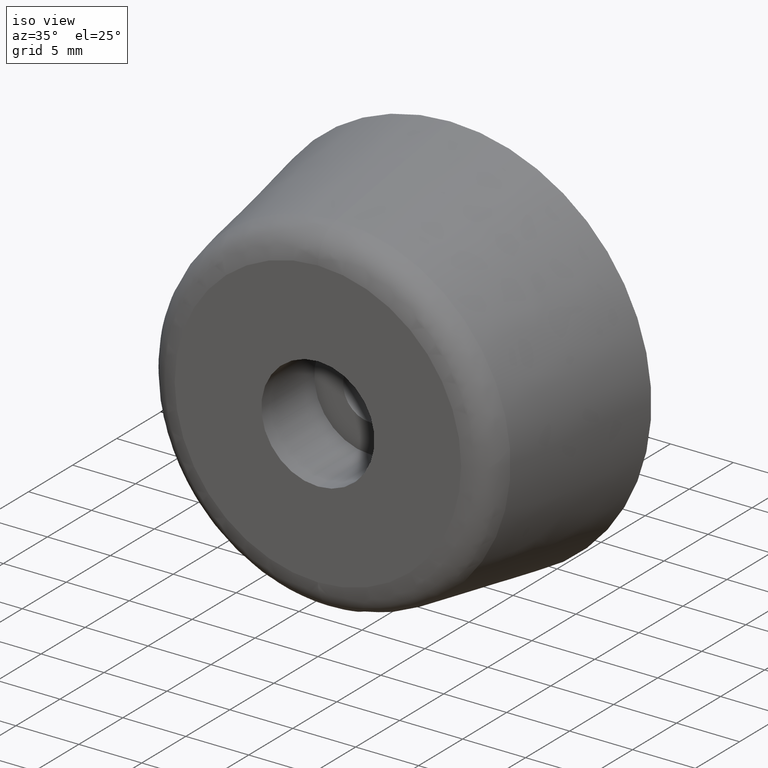
[diagram: clean part render]
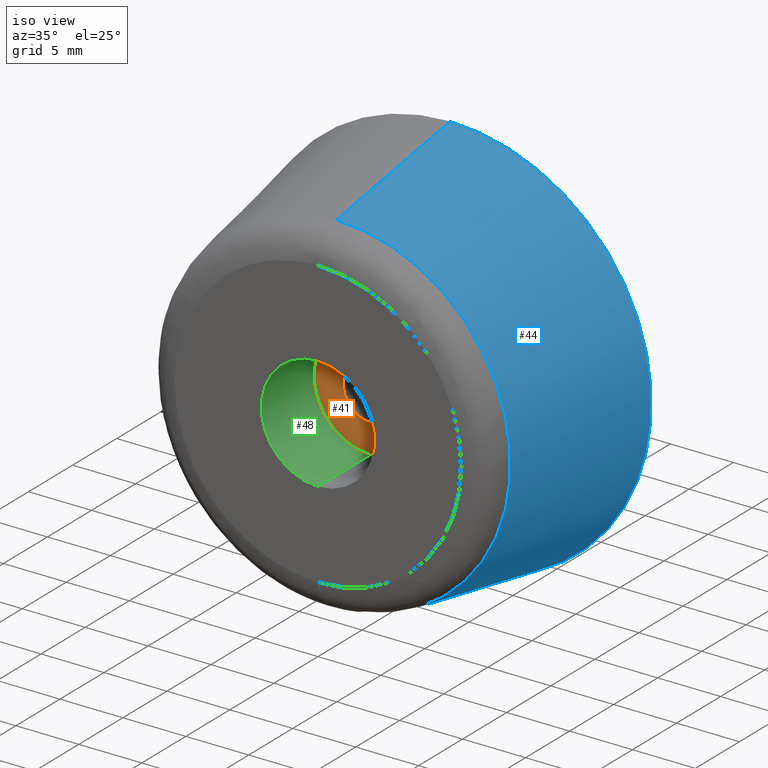
[diagram: same view with three faces highlighted in distinct colors, each labeled with its STEP entity id]
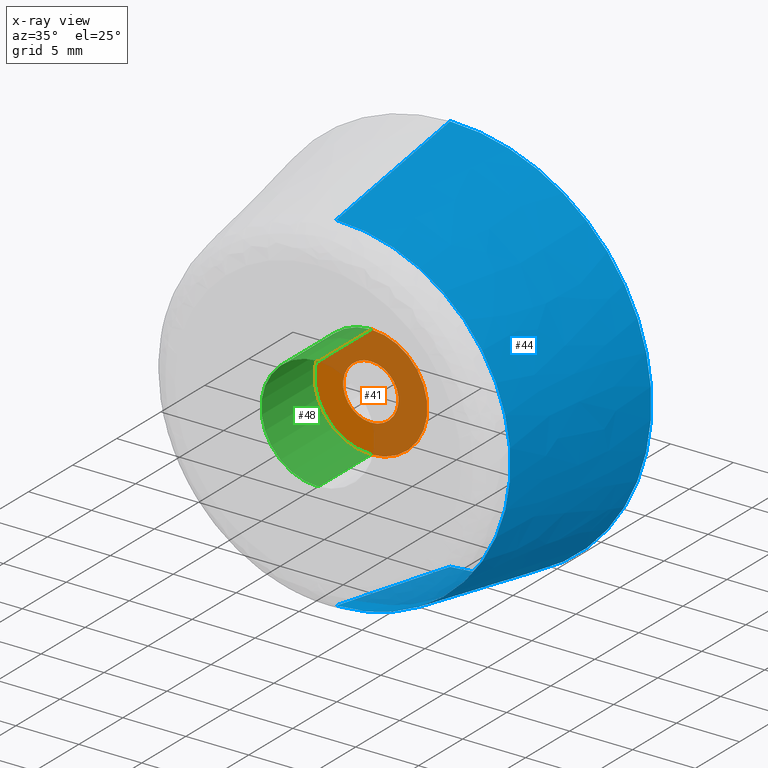
[diagram: x-ray of the same camera — body ghosted, the three highlighted faces saturated]
A machine part, iso view with three faces highlighted in distinct colors.
The next image is the same camera in x-ray (body ghosted, the three faces saturated) — at least one of them is partly hidden behind the body in this view.
Their STEP definitions:

[orange] entity #41 — the highlighted planar face has unit normal (0, -1, -0).
#41=ADVANCED_FACE('',(#63,#64),#62,.T.);
#62=PLANE('',#173);
#63=FACE_OUTER_BOUND('',#174,.T.);
#64=FACE_BOUND('',#175,.T.);
#170=CARTESIAN_POINT('',(-9.35307436087E+00,-9.00000000000E+00,1.03500000000E+01));
#171=DIRECTION('',(0.00000000000E+00,-1.00000000000E+00,-0.00000000000E+00));
#172=DIRECTION('',(0.00000000000E+00,0.00000000000E+00,-1.00000000000E+00));
#173=AXIS2_PLACEMENT_3D('',#170,#171,#172);
#174=EDGE_LOOP('',(#280,#281));
#175=EDGE_LOOP('',(#282,#283));
#280=ORIENTED_EDGE('',*,*,#324,.T.);
#281=ORIENTED_EDGE('',*,*,#325,.T.);
#282=ORIENTED_EDGE('',*,*,#326,.F.);
#283=ORIENTED_EDGE('',*,*,#327,.F.);
#324=EDGE_CURVE('',#370,#371,#372,.T.);
#325=EDGE_CURVE('',#371,#370,#378,.T.);
#326=EDGE_CURVE('',#384,#385,#386,.T.);
#327=EDGE_CURVE('',#385,#384,#392,.T.);
#370=VERTEX_POINT('',#508);
#371=VERTEX_POINT('',#509);
#372=CIRCLE('',#513,4.50000000000E+00);
#378=CIRCLE('',#517,4.50000000000E+00);
#384=VERTEX_POINT('',#518);
#385=VERTEX_POINT('',#519);
#386=CIRCLE('',#523,2.20000000000E+00);
#392=CIRCLE('',#527,2.20000000000E+00);
#508=CARTESIAN_POINT('',(1.42108547152E-14,-9.00000000000E+00,-4.50000000000E+00));
#509=CARTESIAN_POINT('',(1.46549439251E-14,-9.00000000000E+00,4.50000000000E+00));
#510=CARTESIAN_POINT('',(1.42108547152E-14,-9.00000000000E+00,0.00000000000E+00));
#511=DIRECTION('',(0.00000000000E+00,-1.00000000000E+00,-0.00000000000E+00));
#512=DIRECTION('',(-1.22460635382E-16,0.00000000000E+00,-1.00000000000E+00));
#513=AXIS2_PLACEMENT_3D('',#510,#511,#512);
#514=CARTESIAN_POINT('',(1.42108547152E-14,-9.00000000000E+00,0.00000000000E+00));
#515=DIRECTION('',(0.00000000000E+00,-1.00000000000E+00,-0.00000000000E+00));
#516=DIRECTION('',(-1.22460635382E-16,0.00000000000E+00,-1.00000000000E+00));
#517=AXIS2_PLACEMENT_3D('',#514,#515,#516);
#518=CARTESIAN_POINT('',(1.43588844518E-14,-9.00000000000E+00,2.20000000000E+00));
#519=CARTESIAN_POINT('',(1.42108547152E-14,-9.00000000000E+00,-2.20000000000E+00));
#520=CARTESIAN_POINT('',(1.42108547152E-14,-9.00000000000E+00,0.00000000000E+00));
#521=DIRECTION('',(0.00000000000E+00,-1.00000000000E+00,-0.00000000000E+00));
#522=DIRECTION('',(-1.22460635382E-16,0.00000000000E+00,-1.00000000000E+00));
#523=AXIS2_PLACEMENT_3D('',#520,#521,#522);
#524=CARTESIAN_POINT('',(1.42108547152E-14,-9.00000000000E+00,0.00000000000E+00));
#525=DIRECTION('',(0.00000000000E+00,-1.00000000000E+00,-0.00000000000E+00));
#526=DIRECTION('',(-1.22460635382E-16,0.00000000000E+00,-1.00000000000E+00));
#527=AXIS2_PLACEMENT_3D('',#524,#525,#526);

[blue] entity #44 — the highlighted face is a freeform B-spline surface patch.
#44=ADVANCED_FACE('',(#95),#94,.T.);
#94=( BOUNDED_SURFACE() B_SPLINE_SURFACE( 2,1,((#193,#194),(#195,#196),(#197,#198),(#199,#200),(#201,#202)), .UNSPECIFIED.,.F.,.F.,.F.) B_SPLINE_SURFACE_WITH_KNOTS((3,2,3),(2,2),(0.00000000000E+00,5.00000000000E-01,1.00000000000E+00),(0.00000000000E+00,1.00000000000E+00), .UNSPECIFIED. ) GEOMETRIC_REPRESENTATION_ITEM() RATIONAL_B_SPLINE_SURFACE(((1.00000000000E+00,1.00000000000E+00),(7.07106781187E-01,7.07106781187E-01),(1.00000000000E+00,1.00000000000E+00),(7.07106781187E-01,7.07106781187E-01),(1.00000000000E+00,1.00000000000E+00))) REPRESENTATION_ITEM('') SURFACE() );
#95=FACE_OUTER_BOUND('',#203,.T.);
#193=CARTESIAN_POINT('',(1.59067660651E-14,-1.29109974683E+01,1.38481670886E+01));
#194=CARTESIAN_POINT('',(1.61702895938E-14,0.00000000000E+00,1.60000000000E+01));
#195=CARTESIAN_POINT('',(1.38481670886E+01,-1.29109974683E+01,1.38481670886E+01));
#196=CARTESIAN_POINT('',(1.60000000000E+01,0.00000000000E+00,1.60000000000E+01));
#197=CARTESIAN_POINT('',(1.38481670886E+01,-1.29109974683E+01,-8.47955674957E-16));
#198=CARTESIAN_POINT('',(1.60000000000E+01,0.00000000000E+00,-9.79717439318E-16));
#199=CARTESIAN_POINT('',(1.38481670886E+01,-1.29109974683E+01,-1.38481670886E+01));
#200=CARTESIAN_POINT('',(1.60000000000E+01,0.00000000000E+00,-1.60000000000E+01));
#201=CARTESIAN_POINT('',(1.42108547152E-14,-1.29109974683E+01,-1.38481670886E+01));
#202=CARTESIAN_POINT('',(1.42108547152E-14,0.00000000000E+00,-1.60000000000E+01));
#203=EDGE_LOOP('',(#292,#293,#294,#295));
#292=ORIENTED_EDGE('',*,*,#335,.F.);
#293=ORIENTED_EDGE('',*,*,#332,.T.);
#294=ORIENTED_EDGE('',*,*,#321,.T.);
#295=ORIENTED_EDGE('',*,*,#334,.F.);
#321=EDGE_CURVE('',#343,#342,#350,.T.);
#332=EDGE_CURVE('',#426,#343,#427,.T.);
#334=EDGE_CURVE('',#433,#342,#440,.T.);
#335=EDGE_CURVE('',#426,#433,#446,.T.);
#342=VERTEX_POINT('',#488);
#343=VERTEX_POINT('',#489);
#350=CIRCLE('',#497,1.60000000000E+01);
#426=VERTEX_POINT('',#548);
#427=(BOUNDED_CURVE() B_SPLINE_CURVE(1,(#549,#550),.UNSPECIFIED.,.F.,.F.) B_SPLINE_CURVE_WITH_KNOTS((2,2),(0.00000000000E+00,1.00000000000E+00),.UNSPECIFIED.) CURVE() GEOMETRIC_REPRESENTATION_ITEM() RATIONAL_B_SPLINE_CURVE((1.00000000000E+00,1.00000000000E+00)) REPRESENTATION_ITEM('') );
#433=VERTEX_POINT('',#551);
#440=(BOUNDED_CURVE() B_SPLINE_CURVE(1,(#556,#557),.UNSPECIFIED.,.F.,.F.) B_SPLINE_CURVE_WITH_KNOTS((2,2),(0.00000000000E+00,1.00000000000E+00),.UNSPECIFIED.) CURVE() GEOMETRIC_REPRESENTATION_ITEM() RATIONAL_B_SPLINE_CURVE((7.50000000000E-01,7.50000000000E-01)) REPRESENTATION_ITEM('') );
#446=CIRCLE('',#561,1.38481670886E+01);
#488=CARTESIAN_POINT('',(1.59872115546E-14,0.00000000000E+00,1.60000000000E+01));
#489=CARTESIAN_POINT('',(1.42108547152E-14,0.00000000000E+00,-1.60000000000E+01));
#494=CARTESIAN_POINT('',(1.42108547152E-14,0.00000000000E+00,0.00000000000E+00));
#495=DIRECTION('',(0.00000000000E+00,-1.00000000000E+00,-0.00000000000E+00));
#496=DIRECTION('',(-1.22460635382E-16,0.00000000000E+00,-1.00000000000E+00));
#497=AXIS2_PLACEMENT_3D('',#494,#495,#496);
#548=CARTESIAN_POINT('',(1.42108547152E-14,-1.29109974683E+01,-1.38481670886E+01));
#549=CARTESIAN_POINT('',(1.08191440341E-14,-1.29109974683E+01,-1.38481670886E+01));
#550=CARTESIAN_POINT('',(1.02921143830E-14,0.00000000000E+00,-1.60000000000E+01));
#551=CARTESIAN_POINT('',(1.48029736617E-14,-1.29109974683E+01,1.38481670886E+01));
#556=CARTESIAN_POINT('',(1.77635683940E-14,-1.29109974683E+01,1.38481670886E+01));
#557=CARTESIAN_POINT('',(1.83556873405E-14,0.00000000000E+00,1.60000000000E+01));
#558=CARTESIAN_POINT('',(1.42108547152E-14,-1.29109974683E+01,0.00000000000E+00));
#559=DIRECTION('',(0.00000000000E+00,-1.00000000000E+00,-0.00000000000E+00));
#560=DIRECTION('',(-1.22460635382E-16,0.00000000000E+00,-1.00000000000E+00));
#561=AXIS2_PLACEMENT_3D('',#558,#559,#560);

[green] entity #48 — the highlighted cylindrical surface (partial cylindrical patch) has radius 4.5 mm, axis along (-0, 1, 0).
#48=ADVANCED_FACE('',(#135),#134,.F.);
#134=CYLINDRICAL_SURFACE('',#222,4.50000000000E+00);
#135=FACE_OUTER_BOUND('',#223,.T.);
#219=CARTESIAN_POINT('',(1.42108547152E-14,0.00000000000E+00,0.00000000000E+00));
#220=DIRECTION('',(-0.00000000000E+00,1.00000000000E+00,0.00000000000E+00));
#221=DIRECTION('',(-0.00000000000E+00,-0.00000000000E+00,1.00000000000E+00));
#222=AXIS2_PLACEMENT_3D('',#219,#220,#221);
#223=EDGE_LOOP('',(#308,#309,#310,#311));
#308=ORIENTED_EDGE('',*,*,#325,.F.);
#309=ORIENTED_EDGE('',*,*,#338,.F.);
#310=ORIENTED_EDGE('',*,*,#330,.T.);
#311=ORIENTED_EDGE('',*,*,#339,.T.);
#325=EDGE_CURVE('',#371,#370,#378,.T.);
#330=EDGE_CURVE('',#412,#413,#414,.T.);
#338=EDGE_CURVE('',#412,#371,#464,.T.);
#339=EDGE_CURVE('',#413,#370,#470,.T.);
#370=VERTEX_POINT('',#508);
#371=VERTEX_POINT('',#509);
#378=CIRCLE('',#517,4.50000000000E+00);
#412=VERTEX_POINT('',#538);
#413=VERTEX_POINT('',#539);
#414=CIRCLE('',#543,4.50000000000E+00);
#464=(BOUNDED_CURVE() B_SPLINE_CURVE(1,(#566,#567),.UNSPECIFIED.,.F.,.F.) B_SPLINE_CURVE_WITH_KNOTS((2,2),(8.33333347523E-02,9.16666668865E-01),.UNSPECIFIED.) CURVE() GEOMETRIC_REPRESENTATION_ITEM() RATIONAL_B_SPLINE_CURVE((1.00000000000E+00,1.00000000000E+00)) REPRESENTATION_ITEM('') );
#470=(BOUNDED_CURVE() B_SPLINE_CURVE(1,(#568,#569),.UNSPECIFIED.,.F.,.F.) B_SPLINE_CURVE_WITH_KNOTS((2,2),(8.33333333333E-02,9.16666666667E-01),.UNSPECIFIED.) CURVE() GEOMETRIC_REPRESENTATION_ITEM() RATIONAL_B_SPLINE_CURVE((7.50000000000E-01,7.50000000000E-01)) REPRESENTATION_ITEM('') );
#508=CARTESIAN_POINT('',(1.42108547152E-14,-9.00000000000E+00,-4.50000000000E+00));
#509=CARTESIAN_POINT('',(1.46549439251E-14,-9.00000000000E+00,4.50000000000E+00));
#514=CARTESIAN_POINT('',(1.42108547152E-14,-9.00000000000E+00,0.00000000000E+00));
#515=DIRECTION('',(0.00000000000E+00,-1.00000000000E+00,-0.00000000000E+00));
#516=DIRECTION('',(-1.22460635382E-16,0.00000000000E+00,-1.00000000000E+00));
#517=AXIS2_PLACEMENT_3D('',#514,#515,#516);
#538=CARTESIAN_POINT('',(1.46549439251E-14,-1.50000000000E+01,4.50000000000E+00));
#539=CARTESIAN_POINT('',(1.42108547152E-14,-1.50000000000E+01,-4.50000000000E+00));
#540=CARTESIAN_POINT('',(1.42108547152E-14,-1.50000000000E+01,0.00000000000E+00));
#541=DIRECTION('',(0.00000000000E+00,-1.00000000000E+00,-0.00000000000E+00));
#542=DIRECTION('',(-1.22460635382E-16,0.00000000000E+00,-1.00000000000E+00));
#543=AXIS2_PLACEMENT_3D('',#540,#541,#542);
#566=CARTESIAN_POINT('',(1.42108547152E-14,-1.49999999898E+01,4.50000000000E+00));
#567=CARTESIAN_POINT('',(1.42108547152E-14,-8.99999998417E+00,4.50000000000E+00));
#568=CARTESIAN_POINT('',(1.40628249786E-14,-1.50000000000E+01,-4.50000000000E+00));
#569=CARTESIAN_POINT('',(1.40628249786E-14,-9.00000000000E+00,-4.50000000000E+00));